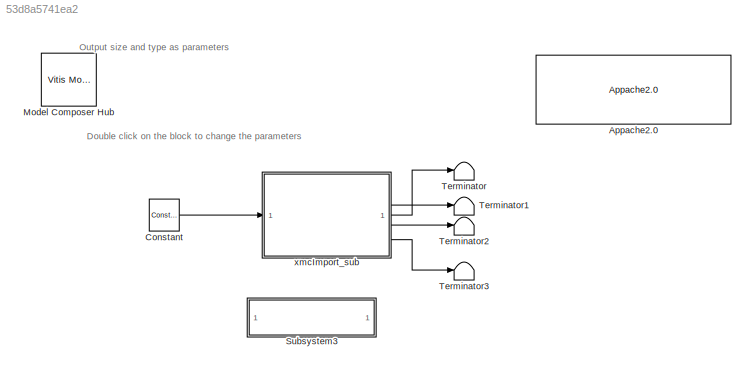
MODEL slx_53d8a5741ea2
KIND model
CONFIG AbsTol = auto
CONFIG EnableMultiTasking = on
CONFIG FixedStep = auto
CONFIG InitFcn = var=20
CONFIG MaxStep = auto
CONFIG MinStep = auto
CONFIG RelTol = 1e-3
CONFIG SampleTimeConstraint = Unconstrained
CONFIG SolverName = VariableStepAuto
CONFIG StartTime = 0.0
CONFIG StopTime = 10.0
BLOCK [Reference] Appache2.0  REF=vmcUtilities/Appache2.0
  SourceBlock = vmcUtilities/Appache2.0
  SourceType = DocBlock
  UserDataPersistent = on
BLOCK [Reference] Constant  REF=hlsBasic/Constant
  SourceBlock = hlsBasic/Constant
  SourceType = Constant
BLOCK [Reference] Model Composer Hub  REF=vmcUtilities/Vitis Model Composer Hub
  SourceBlock = vmcUtilities/Vitis Model Composer Hub
  SourceType = VMC Hub
  Tag = genX
  UserDataPersistent = on
BLOCK [SubSystem] Subsystem3
  OpenFcn = xmcOpenFileEx
BLOCK [Terminator] Terminator
BLOCK [Terminator] Terminator1
BLOCK [Terminator] Terminator2
BLOCK [Terminator] Terminator3
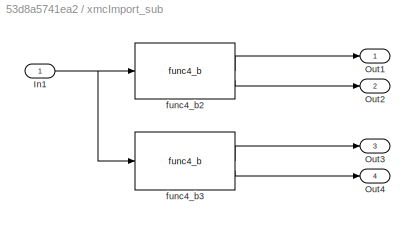
BLOCK [SubSystem] xmcImport_sub
BLOCK [Inport] xmcImport_sub/In1
BLOCK [Outport] xmcImport_sub/Out1
BLOCK [Outport] xmcImport_sub/Out2
  Port = 2
BLOCK [Outport] xmcImport_sub/Out3
  Port = 3
BLOCK [Outport] xmcImport_sub/Out4
  Port = 4
BLOCK [Reference] xmcImport_sub/func4_b2  REF=parametrization_4_lib/func4_b
  SourceBlock = parametrization_4_lib/func4_b
  SourceType = Import Function
BLOCK [Reference] xmcImport_sub/func4_b3  REF=parametrization_4_lib/func4_b
  SourceBlock = parametrization_4_lib/func4_b
  SourceType = Import Function
ANNOTATION (root): Output size and type as parameters
ANNOTATION (root): Double click on the block to change the parameters
LINE Constant:1 -> xmcImport_sub:1
NET xmcImport_sub/In1:1 -> xmcImport_sub/func4_b2:1, xmcImport_sub/func4_b3:1
LINE xmcImport_sub/func4_b2:1 -> xmcImport_sub/Out1:1
LINE xmcImport_sub/func4_b2:2 -> xmcImport_sub/Out2:1
LINE xmcImport_sub/func4_b3:1 -> xmcImport_sub/Out3:1
LINE xmcImport_sub/func4_b3:2 -> xmcImport_sub/Out4:1
LINE xmcImport_sub:1 -> Terminator:1
LINE xmcImport_sub:2 -> Terminator1:1
LINE xmcImport_sub:3 -> Terminator2:1
LINE xmcImport_sub:4 -> Terminator3:1
note: NET lines group one-source signal fan-out (src -> all destinations, sorted); 1:1 wires keep LINE
